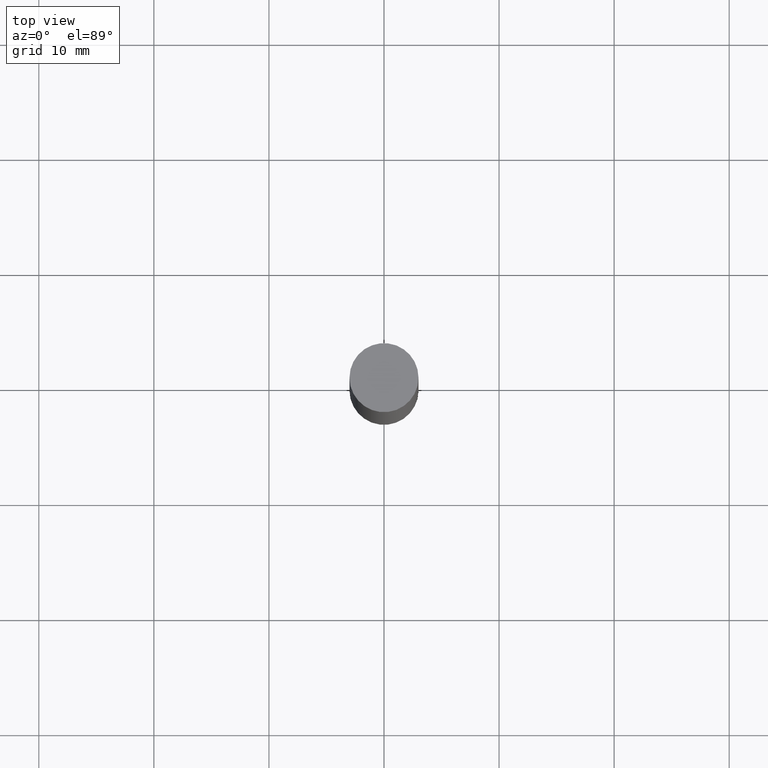
[diagram: clean part render]
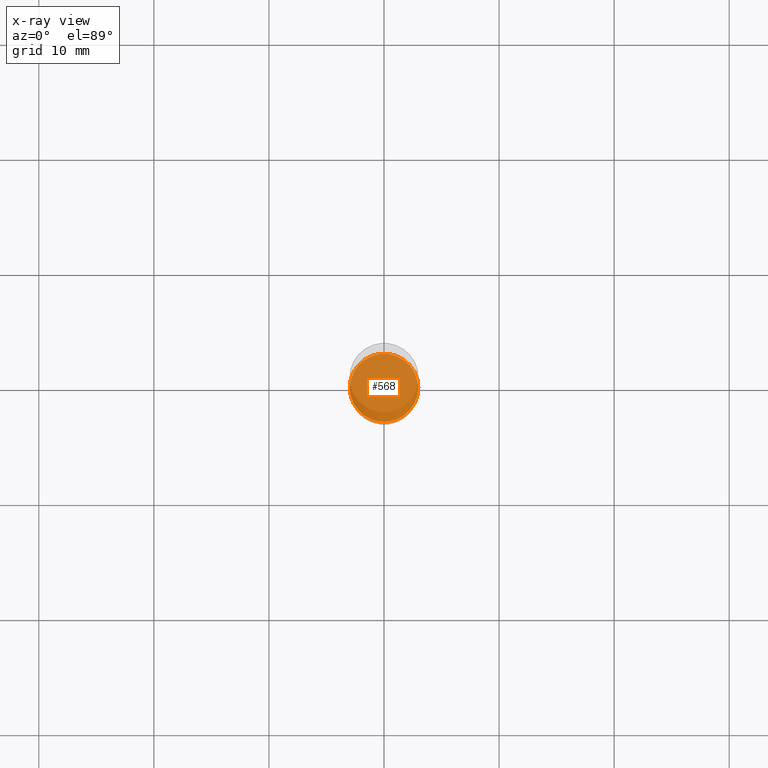
[diagram: x-ray — body ghosted, one internal face saturated and labeled with its STEP entity id]
A machine part, top view, then the same camera in x-ray: the body is ghosted and one INTERNAL B-rep face — a face not visible from any outside direction — is saturated and labeled: STEP entity #568.
In plain terms, the highlighted planar face has unit normal (-0, 0, 1).
Its self-contained STEP definition (entity closure, byte-faithful):
#21 = DIRECTION ( 'NONE',  ( -2.445468806185136597E-29, 3.491481338843145583E-15, 1.000000000000000000 ) ) ;
#34 = AXIS2_PLACEMENT_3D ( 'NONE', #495, #21, #183 ) ;
#57 = AXIS2_PLACEMENT_3D ( 'NONE', #403, #408, #150 ) ;
#62 = CARTESIAN_POINT ( 'NONE',  ( 4.910256815939135870E-29, -7.010545380263151710E-15, -2.007899999999999796 ) ) ;
#68 = DIRECTION ( 'NONE',  ( 1.000000000000000000, -6.982962677686264344E-15, 0.000000000000000000 ) ) ;
#150 = DIRECTION ( 'NONE',  ( 1.000000000000000000, -6.982962677686265922E-15, 4.876176775795935793E-29 ) ) ;
#183 = DIRECTION ( 'NONE',  ( 1.000000000000000000, -6.982962677686264344E-15, 0.000000000000000000 ) ) ;
#233 = ORIENTED_EDGE ( 'NONE', *, *, #445, .F. ) ;
#255 = VERTEX_POINT ( 'NONE', #567 ) ;
#260 = FACE_OUTER_BOUND ( 'NONE', #608, .T. ) ;
#279 = DIRECTION ( 'NONE',  ( -2.445468806185136597E-29, 3.491481338843145583E-15, 1.000000000000000000 ) ) ;
#328 = VERTEX_POINT ( 'NONE', #549 ) ;
#386 = ORIENTED_EDGE ( 'NONE', *, *, #527, .F. ) ;
#403 = CARTESIAN_POINT ( 'NONE',  ( 4.910256815939136430E-29, -7.010545380263152499E-15, -2.007900000000000240 ) ) ;
#408 = DIRECTION ( 'NONE',  ( -2.438088387897960049E-29, 3.491481338843145188E-15, 1.000000000000000000 ) ) ;
#445 = EDGE_CURVE ( 'NONE', #255, #328, #500, .T. ) ;
#495 = CARTESIAN_POINT ( 'NONE',  ( 4.910256815939135870E-29, -7.010545380263151710E-15, -2.007899999999999796 ) ) ;
#500 = CIRCLE ( 'NONE', #623, 0.1170999999999999958 ) ;
#527 = EDGE_CURVE ( 'NONE', #328, #255, #634, .T. ) ;
#549 = CARTESIAN_POINT ( 'NONE',  ( 0.1170999999999999958, -7.828250309820213170E-15, -2.007899999999999796 ) ) ;
#567 = CARTESIAN_POINT ( 'NONE',  ( -0.1170999999999999958, -6.173201382339852908E-15, -2.007899999999999796 ) ) ;
#568 = ADVANCED_FACE ( 'NONE', ( #260 ), #670, .F. ) ;
#608 = EDGE_LOOP ( 'NONE', ( #386, #233 ) ) ;
#623 = AXIS2_PLACEMENT_3D ( 'NONE', #62, #279, #68 ) ;
#634 = CIRCLE ( 'NONE', #34, 0.1170999999999999958 ) ;
#670 = PLANE ( 'NONE',  #57 ) ;